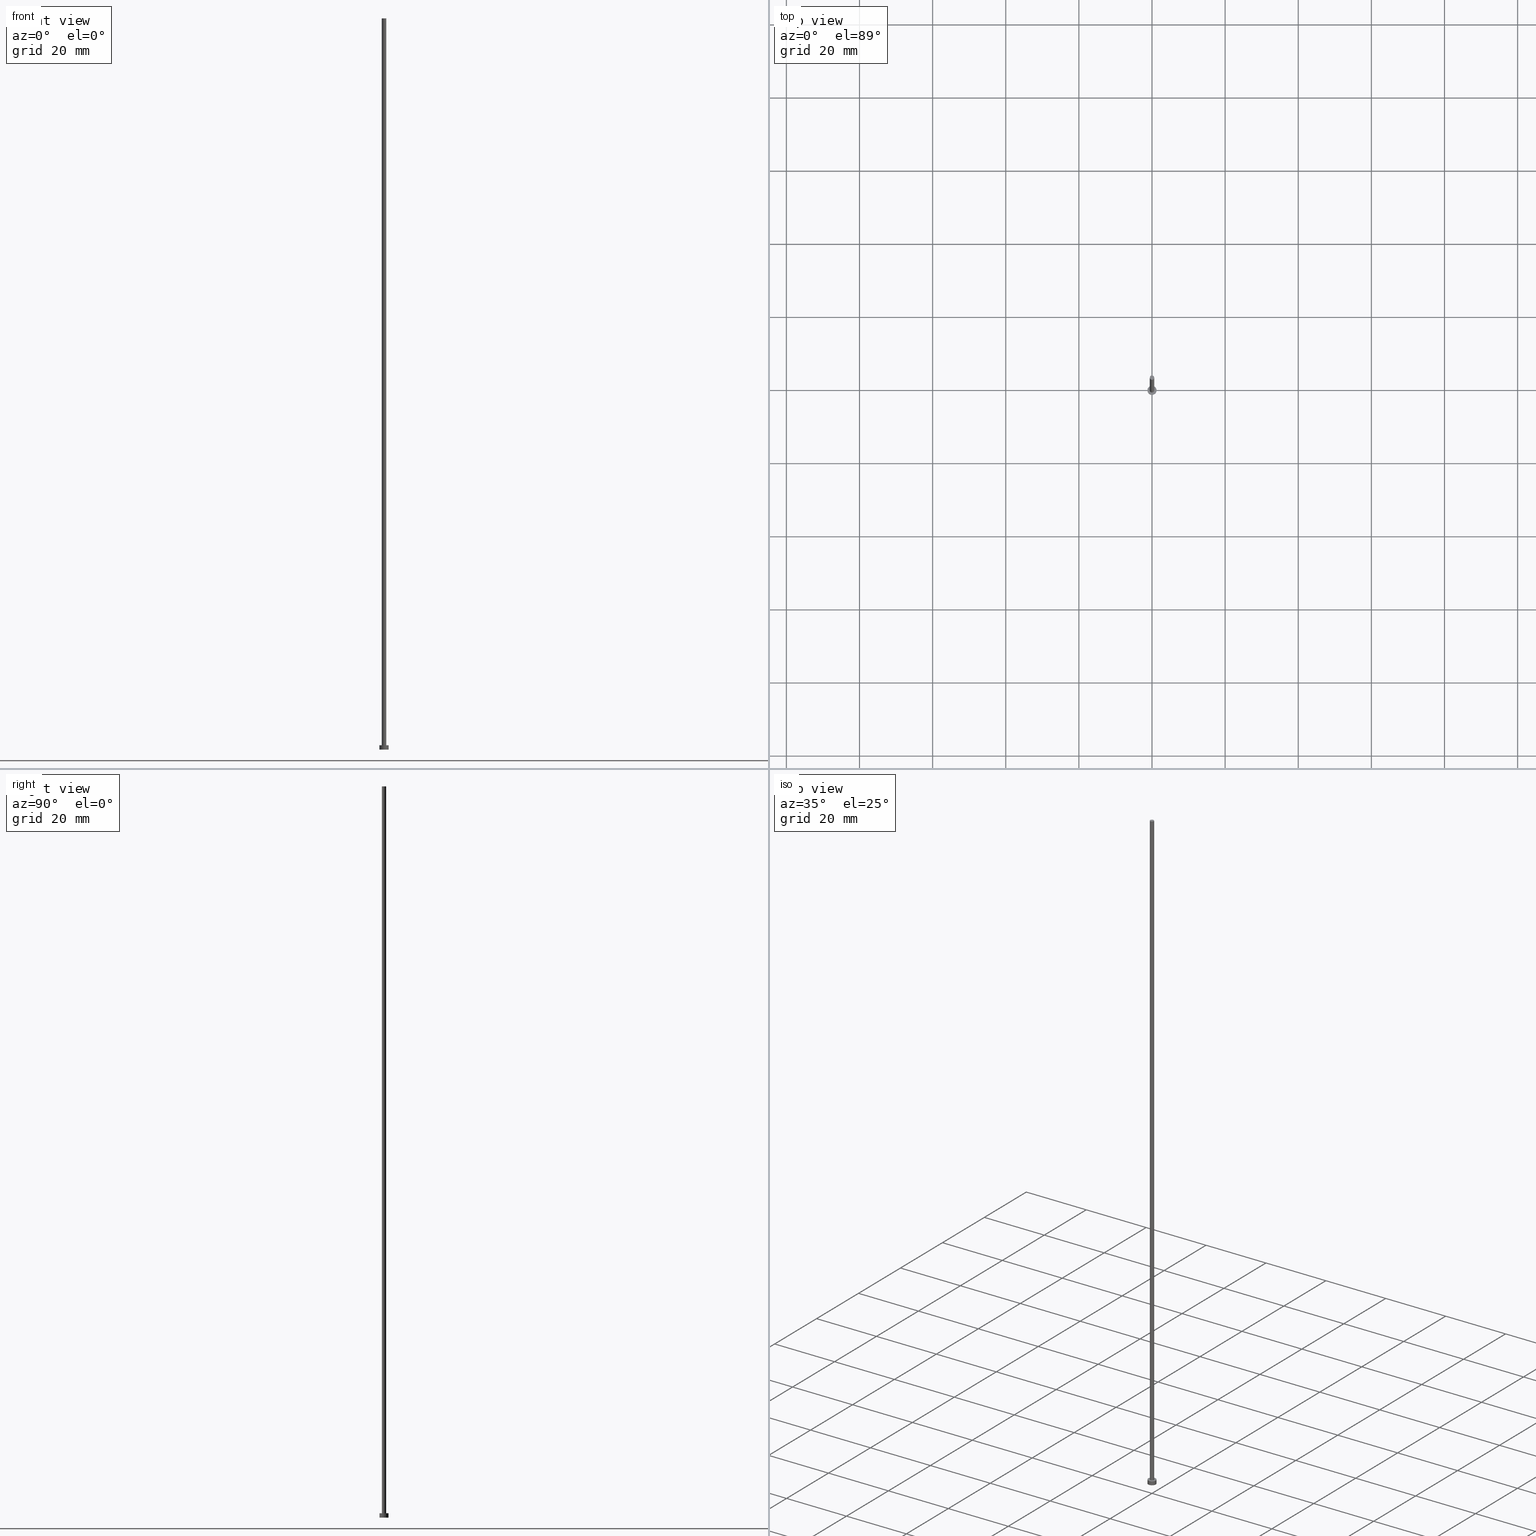
[diagram: canonical four-view strip — front | top / right | iso, engineering-drawing reading convention]
A machine part, canonical four-view strip (front | top / right | iso — engineering-drawing reading convention). The complete STEP part file that produces these views, byte-faithful:
ISO-10303-21;
HEADER;
FILE_DESCRIPTION (( 'STEP AP203' ),
    '1' );
FILE_NAME ('a618.STEP',
    '2026-02-06T12:33:45',
    ( '' ),
    ( '' ),
    'SwSTEP 2.0',
    'SolidWorks 2019',
    '' );
FILE_SCHEMA (( 'CONFIG_CONTROL_DESIGN' ));
ENDSEC;

DATA;
#1 = PRODUCT ( 'a618', 'a618', '', ( #60 ) ) ;
#2 = CLOSED_SHELL ( 'NONE', ( #253, #77, #229, #103, #112, #143, #185 ) ) ;
#3 = DIRECTION ( 'NONE',  ( -0.000000000000000000, -0.000000000000000000, -1.000000000000000000 ) ) ;
#4 = EDGE_CURVE ( 'NONE', #101, #65, #147, .T. ) ;
#5 = COORDINATED_UNIVERSAL_TIME_OFFSET ( 1, 0, .AHEAD. ) ;
#6 = CIRCLE ( 'NONE', #47, 1.250000000000000000 ) ;
#7 = PRODUCT_DEFINITION ( 'NEZN�M�', '', #25, #174 ) ;
#8 = AXIS2_PLACEMENT_3D ( 'NONE', #137, #203, #240 ) ;
#9 = CARTESIAN_POINT ( 'NONE',  ( 0.000000000000000000, 0.000000000000000000, 0.000000000000000000 ) ) ;
#10 = AXIS2_PLACEMENT_3D ( 'NONE', #121, #172, #44 ) ;
#11 = ORIENTED_EDGE ( 'NONE', *, *, #217, .T. ) ;
#12 = LOCAL_TIME ( 13, 33, 45.00000000000000000, #5 ) ;
#13 = EDGE_LOOP ( 'NONE', ( #155, #11 ) ) ;
#14 = DIRECTION ( 'NONE',  ( -0.000000000000000000, -0.000000000000000000, -1.000000000000000000 ) ) ;
#15 = PERSON_AND_ORGANIZATION ( #110, #21 ) ;
#16 = CARTESIAN_POINT ( 'NONE',  ( 0.5999999999999999778, 7.347880794884117764E-17, 1.199999999999999956 ) ) ;
#17 = DIRECTION ( 'NONE',  ( -1.000000000000000000, 0.000000000000000000, 0.000000000000000000 ) ) ;
#18 = ORIENTED_EDGE ( 'NONE', *, *, #136, .F. ) ;
#19 = VECTOR ( 'NONE', #40, 1000.000000000000000 ) ;
#20 = CARTESIAN_POINT ( 'NONE',  ( -1.250000000000000000, 0.000000000000000000, 1.199999999999999956 ) ) ;
#21 = ORGANIZATION ( 'NEUR�EN�', 'NEUR�EN�', '' ) ;
#22 = CIRCLE ( 'NONE', #178, 1.250000000000000000 ) ;
#23 = EDGE_CURVE ( 'NONE', #83, #128, #242, .T. ) ;
#24 = CC_DESIGN_PERSON_AND_ORGANIZATION_ASSIGNMENT ( #50, #48, ( #131 ) ) ;
#25 = PRODUCT_DEFINITION_FORMATION_WITH_SPECIFIED_SOURCE ( 'LIBOVOLN�', '', #1, .NOT_KNOWN. ) ;
#26 = CC_DESIGN_PERSON_AND_ORGANIZATION_ASSIGNMENT ( #219, #31, ( #7 ) ) ;
#27 = FACE_OUTER_BOUND ( 'NONE', #13, .T. ) ;
#28 = PRODUCT_RELATED_PRODUCT_CATEGORY ( 'detail', '', ( #1 ) ) ;
#29 = AXIS2_PLACEMENT_3D ( 'NONE', #176, #177, #141 ) ;
#30 = CARTESIAN_POINT ( 'NONE',  ( -0.5999999999999999778, 0.000000000000000000, 1.199999999999999956 ) ) ;
#31 = PERSON_AND_ORGANIZATION_ROLE ( 'creator' ) ;
#32 = UNCERTAINTY_MEASURE_WITH_UNIT (LENGTH_MEASURE( 1.000000000000000082E-05 ), #188, 'distance_accuracy_value', 'NONE');
#33 = APPROVAL_PERSON_ORGANIZATION ( #120, #82, #243 ) ;
#34 = CC_DESIGN_DATE_AND_TIME_ASSIGNMENT ( #133, #132, ( #131 ) ) ;
#35 = EDGE_CURVE ( 'NONE', #61, #183, #6, .T. ) ;
#36 = ORIENTED_EDGE ( 'NONE', *, *, #122, .T. ) ;
#37 = CC_DESIGN_SECURITY_CLASSIFICATION ( #131, ( #25 ) ) ;
#38 = EDGE_LOOP ( 'NONE', ( #67, #225 ) ) ;
#39 = AXIS2_PLACEMENT_3D ( 'NONE', #108, #124, #53 ) ;
#40 = DIRECTION ( 'NONE',  ( -0.000000000000000000, -0.000000000000000000, -1.000000000000000000 ) ) ;
#41 = SECURITY_CLASSIFICATION_LEVEL ( 'unclassified' ) ;
#42 = CIRCLE ( 'NONE', #127, 1.250000000000000000 ) ;
#43 = APPROVAL_ROLE ( '' ) ;
#44 = DIRECTION ( 'NONE',  ( 1.000000000000000000, 0.000000000000000000, -0.000000000000000000 ) ) ;
#45 = CALENDAR_DATE ( 2026, 6, 2 ) ;
#46 = LOCAL_TIME ( 13, 33, 45.00000000000000000, #226 ) ;
#47 = AXIS2_PLACEMENT_3D ( 'NONE', #150, #216, #129 ) ;
#48 = PERSON_AND_ORGANIZATION_ROLE ( 'classification_officer' ) ;
#49 = LINE ( 'NONE', #202, #157 ) ;
#50 = PERSON_AND_ORGANIZATION ( #110, #21 ) ;
#51 = APPLICATION_CONTEXT ( 'configuration controlled 3d designs of mechanical parts and assemblies' ) ;
#52 = PERSON_AND_ORGANIZATION ( #110, #21 ) ;
#53 = DIRECTION ( 'NONE',  ( 1.000000000000000000, 0.000000000000000000, 0.000000000000000000 ) ) ;
#54 = DIRECTION ( 'NONE',  ( -1.000000000000000000, 0.000000000000000000, 0.000000000000000000 ) ) ;
#55 = DIRECTION ( 'NONE',  ( 1.000000000000000000, 0.000000000000000000, 0.000000000000000000 ) ) ;
#56 = EDGE_CURVE ( 'NONE', #183, #61, #99, .T. ) ;
#57 = VECTOR ( 'NONE', #167, 1000.000000000000000 ) ;
#58 = ORIENTED_EDGE ( 'NONE', *, *, #4, .F. ) ;
#59 = DIRECTION ( 'NONE',  ( 0.000000000000000000, 0.000000000000000000, 1.000000000000000000 ) ) ;
#60 = MECHANICAL_CONTEXT ( 'NONE', #248, 'mechanical' ) ;
#61 = VERTEX_POINT ( 'NONE', #234 ) ;
#62 = ORIENTED_EDGE ( 'NONE', *, *, #213, .F. ) ;
#63 = EDGE_LOOP ( 'NONE', ( #62, #96 ) ) ;
#64 = PERSON_AND_ORGANIZATION ( #110, #21 ) ;
#65 = VERTEX_POINT ( 'NONE', #30 ) ;
#66 = DATE_AND_TIME ( #85, #169 ) ;
#67 = ORIENTED_EDGE ( 'NONE', *, *, #156, .F. ) ;
#68 = AXIS2_PLACEMENT_3D ( 'NONE', #239, #210, #113 ) ;
#69 = PLANE ( 'NONE',  #10 ) ;
#70 = ORIENTED_EDGE ( 'NONE', *, *, #189, .F. ) ;
#71 =( NAMED_UNIT ( * ) SI_UNIT ( $, .STERADIAN. ) SOLID_ANGLE_UNIT ( ) );
#72 = ADVANCED_BREP_SHAPE_REPRESENTATION ( 'a618', ( #139, #212 ), #238 ) ;
#73 = AXIS2_PLACEMENT_3D ( 'NONE', #76, #3, #54 ) ;
#74 = DATE_AND_TIME ( #199, #187 ) ;
#75 = DIRECTION ( 'NONE',  ( 1.000000000000000000, 0.000000000000000000, -0.000000000000000000 ) ) ;
#76 = CARTESIAN_POINT ( 'NONE',  ( 0.000000000000000000, 0.000000000000000000, 1.199999999999999956 ) ) ;
#77 = ADVANCED_FACE ( 'NONE', ( #232 ), #125, .T. ) ;
#78 = DIRECTION ( 'NONE',  ( 0.000000000000000000, 0.000000000000000000, 1.000000000000000000 ) ) ;
#79 = CIRCLE ( 'NONE', #197, 0.5999999999999999778 ) ;
#80 = DIRECTION ( 'NONE',  ( 1.000000000000000000, 0.000000000000000000, 0.000000000000000000 ) ) ;
#81 = DIRECTION ( 'NONE',  ( 0.000000000000000000, 0.000000000000000000, 1.000000000000000000 ) ) ;
#82 = APPROVAL ( #196, 'NEUR�EN�' ) ;
#83 = VERTEX_POINT ( 'NONE', #109 ) ;
#84 = CARTESIAN_POINT ( 'NONE',  ( 0.5999999999999999778, 7.347880794884117764E-17, 200.0000000000000000 ) ) ;
#85 = CALENDAR_DATE ( 2026, 6, 2 ) ;
#86 = ORIENTED_EDGE ( 'NONE', *, *, #35, .F. ) ;
#87 = CALENDAR_DATE ( 2026, 6, 2 ) ;
#88 = FACE_OUTER_BOUND ( 'NONE', #149, .T. ) ;
#89 = EDGE_LOOP ( 'NONE', ( #195, #165 ) ) ;
#90 = APPROVAL_STATUS ( 'not_yet_approved' ) ;
#91 = DIRECTION ( 'NONE',  ( -1.000000000000000000, 0.000000000000000000, 0.000000000000000000 ) ) ;
#92 = APPROVAL_STATUS ( 'not_yet_approved' ) ;
#93 = DIRECTION ( 'NONE',  ( 1.000000000000000000, 0.000000000000000000, 0.000000000000000000 ) ) ;
#94 = DIRECTION ( 'NONE',  ( 0.000000000000000000, 0.000000000000000000, 1.000000000000000000 ) ) ;
#95 = FACE_OUTER_BOUND ( 'NONE', #89, .T. ) ;
#96 = ORIENTED_EDGE ( 'NONE', *, *, #237, .F. ) ;
#97 = CARTESIAN_POINT ( 'NONE',  ( 0.000000000000000000, 0.000000000000000000, 0.000000000000000000 ) ) ;
#98 = ORIENTED_EDGE ( 'NONE', *, *, #136, .T. ) ;
#99 = CIRCLE ( 'NONE', #29, 1.250000000000000000 ) ;
#100 = ORIENTED_EDGE ( 'NONE', *, *, #213, .T. ) ;
#101 = VERTEX_POINT ( 'NONE', #191 ) ;
#102 = DATE_AND_TIME ( #208, #159 ) ;
#103 = ADVANCED_FACE ( 'NONE', ( #140, #95 ), #206, .T. ) ;
#104 = LINE ( 'NONE', #20, #57 ) ;
#105 = VECTOR ( 'NONE', #14, 1000.000000000000000 ) ;
#106 = CARTESIAN_POINT ( 'NONE',  ( 0.000000000000000000, 0.000000000000000000, 200.0000000000000000 ) ) ;
#107 = PERSON_AND_ORGANIZATION ( #110, #21 ) ;
#108 = CARTESIAN_POINT ( 'NONE',  ( 0.000000000000000000, 0.000000000000000000, 1.199999999999999956 ) ) ;
#109 = CARTESIAN_POINT ( 'NONE',  ( 0.5999999999999999778, 7.347880794884117764E-17, 200.0000000000000000 ) ) ;
#110 = PERSON ( 'NEUR�EN�', 'NEUR�EN�', 'NEUR�EN�', ('NEUR�EN�'), ('NEUR�EN�'), ('NEUR�EN�') ) ;
#111 = APPROVAL_ROLE ( '' ) ;
#112 = ADVANCED_FACE ( 'NONE', ( #224 ), #69, .F. ) ;
#113 = DIRECTION ( 'NONE',  ( -1.000000000000000000, 0.000000000000000000, 0.000000000000000000 ) ) ;
#114 = APPLICATION_PROTOCOL_DEFINITION ( 'international standard', 'config_control_design', 1994, #248 ) ;
#115 = EDGE_LOOP ( 'NONE', ( #218, #36, #215, #18 ) ) ;
#116 = ORIENTED_EDGE ( 'NONE', *, *, #4, .T. ) ;
#117 = VERTEX_POINT ( 'NONE', #158 ) ;
#118 = PERSON_AND_ORGANIZATION_ROLE ( 'creator' ) ;
#119 = EDGE_LOOP ( 'NONE', ( #207, #194, #247, #58 ) ) ;
#120 = PERSON_AND_ORGANIZATION ( #110, #21 ) ;
#121 = CARTESIAN_POINT ( 'NONE',  ( 0.000000000000000000, 0.000000000000000000, 0.000000000000000000 ) ) ;
#122 = EDGE_CURVE ( 'NONE', #183, #250, #49, .T. ) ;
#123 = CARTESIAN_POINT ( 'NONE',  ( 0.000000000000000000, 0.000000000000000000, 1.199999999999999956 ) ) ;
#124 = DIRECTION ( 'NONE',  ( 0.000000000000000000, 0.000000000000000000, 1.000000000000000000 ) ) ;
#125 = CYLINDRICAL_SURFACE ( 'NONE', #73, 1.250000000000000000 ) ;
#126 = CC_DESIGN_APPROVAL ( #233, ( #7 ) ) ;
#127 = AXIS2_PLACEMENT_3D ( 'NONE', #97, #59, #221 ) ;
#128 = VERTEX_POINT ( 'NONE', #16 ) ;
#129 = DIRECTION ( 'NONE',  ( 1.000000000000000000, 0.000000000000000000, 0.000000000000000000 ) ) ;
#130 = PERSON_AND_ORGANIZATION ( #110, #21 ) ;
#131 = SECURITY_CLASSIFICATION ( '', '', #41 ) ;
#132 = DATE_TIME_ROLE ( 'classification_date' ) ;
#133 = DATE_AND_TIME ( #87, #46 ) ;
#134 = SHAPE_DEFINITION_REPRESENTATION ( #173, #72 ) ;
#135 = COORDINATED_UNIVERSAL_TIME_OFFSET ( 1, 0, .AHEAD. ) ;
#136 = EDGE_CURVE ( 'NONE', #61, #117, #104, .T. ) ;
#137 = CARTESIAN_POINT ( 'NONE',  ( 0.000000000000000000, 0.000000000000000000, 200.0000000000000000 ) ) ;
#138 = APPROVAL_PERSON_ORGANIZATION ( #52, #233, #111 ) ;
#139 = MANIFOLD_SOLID_BREP ( 'P�idat vysunut�m3', #2 ) ;
#140 = FACE_BOUND ( 'NONE', #38, .T. ) ;
#141 = DIRECTION ( 'NONE',  ( 1.000000000000000000, 0.000000000000000000, 0.000000000000000000 ) ) ;
#142 = AXIS2_PLACEMENT_3D ( 'NONE', #106, #170, #91 ) ;
#143 = ADVANCED_FACE ( 'NONE', ( #88 ), #154, .T. ) ;
#144 = COORDINATED_UNIVERSAL_TIME_OFFSET ( 1, 0, .AHEAD. ) ;
#145 = CYLINDRICAL_SURFACE ( 'NONE', #68, 1.250000000000000000 ) ;
#146 = APPROVAL ( #90, 'NEUR�EN�' ) ;
#147 = LINE ( 'NONE', #214, #105 ) ;
#148 = AXIS2_PLACEMENT_3D ( 'NONE', #200, #168, #17 ) ;
#149 = EDGE_LOOP ( 'NONE', ( #181, #70, #116, #161 ) ) ;
#150 = CARTESIAN_POINT ( 'NONE',  ( 0.000000000000000000, 0.000000000000000000, 1.199999999999999956 ) ) ;
#151 = COORDINATED_UNIVERSAL_TIME_OFFSET ( 1, 0, .AHEAD. ) ;
#152 = EDGE_CURVE ( 'NONE', #128, #65, #255, .T. ) ;
#153 = CARTESIAN_POINT ( 'NONE',  ( 1.250000000000000000, 1.530808498934191571E-16, 0.000000000000000000 ) ) ;
#154 = CYLINDRICAL_SURFACE ( 'NONE', #142, 0.5999999999999999778 ) ;
#155 = ORIENTED_EDGE ( 'NONE', *, *, #189, .T. ) ;
#156 = EDGE_CURVE ( 'NONE', #65, #128, #79, .T. ) ;
#157 = VECTOR ( 'NONE', #186, 1000.000000000000000 ) ;
#158 = CARTESIAN_POINT ( 'NONE',  ( -1.250000000000000000, 0.000000000000000000, 0.000000000000000000 ) ) ;
#159 = LOCAL_TIME ( 13, 33, 45.00000000000000000, #144 ) ;
#160 = CARTESIAN_POINT ( 'NONE',  ( 0.000000000000000000, 0.000000000000000000, 200.0000000000000000 ) ) ;
#161 = ORIENTED_EDGE ( 'NONE', *, *, #156, .T. ) ;
#162 = FACE_OUTER_BOUND ( 'NONE', #235, .T. ) ;
#163 = CC_DESIGN_PERSON_AND_ORGANIZATION_ASSIGNMENT ( #107, #223, ( #25 ) ) ;
#164 = CARTESIAN_POINT ( 'NONE',  ( 0.000000000000000000, 0.000000000000000000, 200.0000000000000000 ) ) ;
#165 = ORIENTED_EDGE ( 'NONE', *, *, #56, .T. ) ;
#166 = APPROVAL_PERSON_ORGANIZATION ( #15, #146, #43 ) ;
#167 = DIRECTION ( 'NONE',  ( -0.000000000000000000, -0.000000000000000000, -1.000000000000000000 ) ) ;
#168 = DIRECTION ( 'NONE',  ( -0.000000000000000000, -0.000000000000000000, -1.000000000000000000 ) ) ;
#169 = LOCAL_TIME ( 13, 33, 45.00000000000000000, #135 ) ;
#170 = DIRECTION ( 'NONE',  ( -0.000000000000000000, -0.000000000000000000, -1.000000000000000000 ) ) ;
#171 = PERSON_AND_ORGANIZATION_ROLE ( 'design_owner' ) ;
#172 = DIRECTION ( 'NONE',  ( 0.000000000000000000, 0.000000000000000000, 1.000000000000000000 ) ) ;
#173 = PRODUCT_DEFINITION_SHAPE ( 'NONE', 'NONE',  #7 ) ;
#174 = DESIGN_CONTEXT ( 'detailed design', #51, 'design' ) ;
#175 = PLANE ( 'NONE',  #236 ) ;
#176 = CARTESIAN_POINT ( 'NONE',  ( 0.000000000000000000, 0.000000000000000000, 1.199999999999999956 ) ) ;
#177 = DIRECTION ( 'NONE',  ( 0.000000000000000000, 0.000000000000000000, 1.000000000000000000 ) ) ;
#178 = AXIS2_PLACEMENT_3D ( 'NONE', #9, #81, #179 ) ;
#179 = DIRECTION ( 'NONE',  ( 1.000000000000000000, 0.000000000000000000, 0.000000000000000000 ) ) ;
#180 = CC_DESIGN_PERSON_AND_ORGANIZATION_ASSIGNMENT ( #130, #118, ( #25 ) ) ;
#181 = ORIENTED_EDGE ( 'NONE', *, *, #23, .F. ) ;
#182 = ORIENTED_EDGE ( 'NONE', *, *, #122, .F. ) ;
#183 = VERTEX_POINT ( 'NONE', #190 ) ;
#184 = DATE_TIME_ROLE ( 'creation_date' ) ;
#185 = ADVANCED_FACE ( 'NONE', ( #27 ), #175, .T. ) ;
#186 = DIRECTION ( 'NONE',  ( -0.000000000000000000, -0.000000000000000000, -1.000000000000000000 ) ) ;
#187 = LOCAL_TIME ( 13, 33, 45.00000000000000000, #151 ) ;
#188 =( LENGTH_UNIT ( ) NAMED_UNIT ( * ) SI_UNIT ( .MILLI., .METRE. ) );
#189 = EDGE_CURVE ( 'NONE', #101, #83, #209, .T. ) ;
#190 = CARTESIAN_POINT ( 'NONE',  ( 1.250000000000000000, 1.530808498934191571E-16, 1.199999999999999956 ) ) ;
#191 = CARTESIAN_POINT ( 'NONE',  ( -0.5999999999999999778, 0.000000000000000000, 200.0000000000000000 ) ) ;
#192 = CC_DESIGN_APPROVAL ( #82, ( #25 ) ) ;
#193 = AXIS2_PLACEMENT_3D ( 'NONE', #164, #241, #80 ) ;
#194 = ORIENTED_EDGE ( 'NONE', *, *, #23, .T. ) ;
#195 = ORIENTED_EDGE ( 'NONE', *, *, #35, .T. ) ;
#196 = APPROVAL_STATUS ( 'not_yet_approved' ) ;
#197 = AXIS2_PLACEMENT_3D ( 'NONE', #123, #230, #93 ) ;
#198 = CC_DESIGN_PERSON_AND_ORGANIZATION_ASSIGNMENT ( #64, #171, ( #1 ) ) ;
#199 = CALENDAR_DATE ( 2026, 6, 2 ) ;
#200 = CARTESIAN_POINT ( 'NONE',  ( 0.000000000000000000, 0.000000000000000000, 200.0000000000000000 ) ) ;
#201 =( NAMED_UNIT ( * ) PLANE_ANGLE_UNIT ( ) SI_UNIT ( $, .RADIAN. ) );
#202 = CARTESIAN_POINT ( 'NONE',  ( 1.250000000000000000, 1.530808498934191571E-16, 1.199999999999999956 ) ) ;
#203 = DIRECTION ( 'NONE',  ( 0.000000000000000000, 0.000000000000000000, 1.000000000000000000 ) ) ;
#204 = DIRECTION ( 'NONE',  ( 1.000000000000000000, 0.000000000000000000, -0.000000000000000000 ) ) ;
#205 = CARTESIAN_POINT ( 'NONE',  ( 0.000000000000000000, 0.000000000000000000, 1.199999999999999956 ) ) ;
#206 = PLANE ( 'NONE',  #227 ) ;
#207 = ORIENTED_EDGE ( 'NONE', *, *, #217, .F. ) ;
#208 = CALENDAR_DATE ( 2026, 6, 2 ) ;
#209 = CIRCLE ( 'NONE', #8, 0.5999999999999999778 ) ;
#210 = DIRECTION ( 'NONE',  ( -0.000000000000000000, -0.000000000000000000, -1.000000000000000000 ) ) ;
#211 = CC_DESIGN_APPROVAL ( #146, ( #131 ) ) ;
#212 = AXIS2_PLACEMENT_3D ( 'NONE', #231, #228, #55 ) ;
#213 = EDGE_CURVE ( 'NONE', #117, #250, #22, .T. ) ;
#214 = CARTESIAN_POINT ( 'NONE',  ( -0.5999999999999999778, 0.000000000000000000, 200.0000000000000000 ) ) ;
#215 = ORIENTED_EDGE ( 'NONE', *, *, #237, .T. ) ;
#216 = DIRECTION ( 'NONE',  ( 0.000000000000000000, 0.000000000000000000, 1.000000000000000000 ) ) ;
#217 = EDGE_CURVE ( 'NONE', #83, #101, #252, .T. ) ;
#218 = ORIENTED_EDGE ( 'NONE', *, *, #56, .F. ) ;
#219 = PERSON_AND_ORGANIZATION ( #110, #21 ) ;
#220 = APPROVAL_DATE_TIME ( #74, #146 ) ;
#221 = DIRECTION ( 'NONE',  ( 1.000000000000000000, 0.000000000000000000, 0.000000000000000000 ) ) ;
#222 = CC_DESIGN_DATE_AND_TIME_ASSIGNMENT ( #251, #184, ( #7 ) ) ;
#223 = PERSON_AND_ORGANIZATION_ROLE ( 'design_supplier' ) ;
#224 = FACE_OUTER_BOUND ( 'NONE', #63, .T. ) ;
#225 = ORIENTED_EDGE ( 'NONE', *, *, #152, .F. ) ;
#226 = COORDINATED_UNIVERSAL_TIME_OFFSET ( 1, 0, .AHEAD. ) ;
#227 = AXIS2_PLACEMENT_3D ( 'NONE', #205, #78, #204 ) ;
#228 = DIRECTION ( 'NONE',  ( 0.000000000000000000, 0.000000000000000000, 1.000000000000000000 ) ) ;
#229 = ADVANCED_FACE ( 'NONE', ( #162 ), #145, .T. ) ;
#230 = DIRECTION ( 'NONE',  ( 0.000000000000000000, 0.000000000000000000, 1.000000000000000000 ) ) ;
#231 = CARTESIAN_POINT ( 'NONE',  ( 0.000000000000000000, 0.000000000000000000, 0.000000000000000000 ) ) ;
#232 = FACE_OUTER_BOUND ( 'NONE', #115, .T. ) ;
#233 = APPROVAL ( #92, 'NEUR�EN�' ) ;
#234 = CARTESIAN_POINT ( 'NONE',  ( -1.250000000000000000, 0.000000000000000000, 1.199999999999999956 ) ) ;
#235 = EDGE_LOOP ( 'NONE', ( #182, #86, #98, #100 ) ) ;
#236 = AXIS2_PLACEMENT_3D ( 'NONE', #160, #94, #75 ) ;
#237 = EDGE_CURVE ( 'NONE', #250, #117, #42, .T. ) ;
#238 =( GEOMETRIC_REPRESENTATION_CONTEXT ( 3 ) GLOBAL_UNCERTAINTY_ASSIGNED_CONTEXT ( ( #32 ) ) GLOBAL_UNIT_ASSIGNED_CONTEXT ( ( #188, #201, #71 ) ) REPRESENTATION_CONTEXT ( 'NONE', 'WORKASPACE' ) );
#239 = CARTESIAN_POINT ( 'NONE',  ( 0.000000000000000000, 0.000000000000000000, 1.199999999999999956 ) ) ;
#240 = DIRECTION ( 'NONE',  ( 1.000000000000000000, 0.000000000000000000, 0.000000000000000000 ) ) ;
#241 = DIRECTION ( 'NONE',  ( 0.000000000000000000, 0.000000000000000000, 1.000000000000000000 ) ) ;
#242 = LINE ( 'NONE', #84, #19 ) ;
#243 = APPROVAL_ROLE ( '' ) ;
#244 = FACE_OUTER_BOUND ( 'NONE', #119, .T. ) ;
#245 = APPROVAL_DATE_TIME ( #102, #233 ) ;
#246 = APPROVAL_DATE_TIME ( #66, #82 ) ;
#247 = ORIENTED_EDGE ( 'NONE', *, *, #152, .T. ) ;
#248 = APPLICATION_CONTEXT ( 'configuration controlled 3d designs of mechanical parts and assemblies' ) ;
#249 = CYLINDRICAL_SURFACE ( 'NONE', #148, 0.5999999999999999778 ) ;
#250 = VERTEX_POINT ( 'NONE', #153 ) ;
#251 = DATE_AND_TIME ( #45, #12 ) ;
#252 = CIRCLE ( 'NONE', #193, 0.5999999999999999778 ) ;
#253 = ADVANCED_FACE ( 'NONE', ( #244 ), #249, .T. ) ;
#254 = APPLICATION_PROTOCOL_DEFINITION ( 'international standard', 'config_control_design', 1994, #51 ) ;
#255 = CIRCLE ( 'NONE', #39, 0.5999999999999999778 ) ;
ENDSEC;
END-ISO-10303-21;
